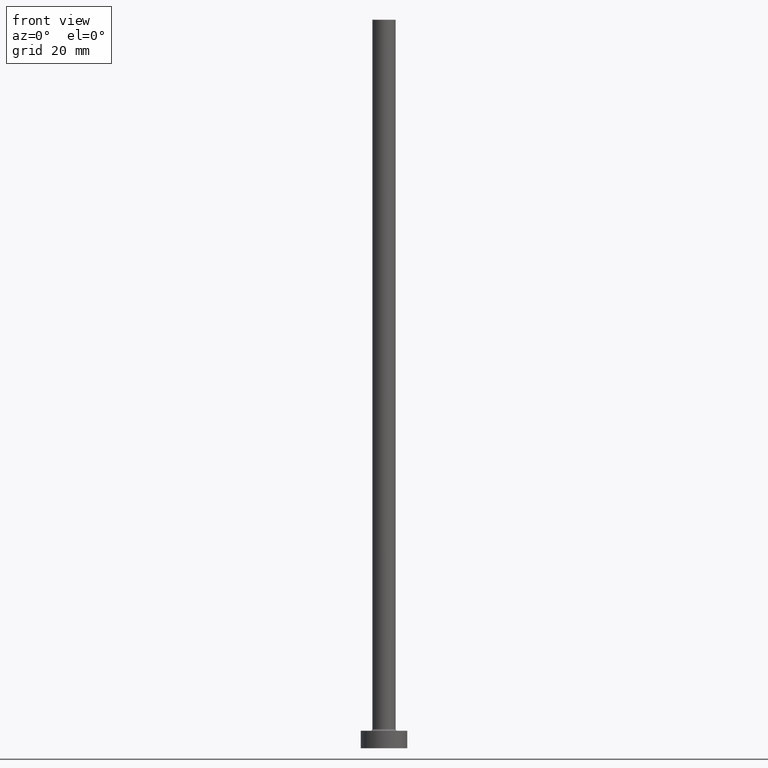
[diagram: clean part render]
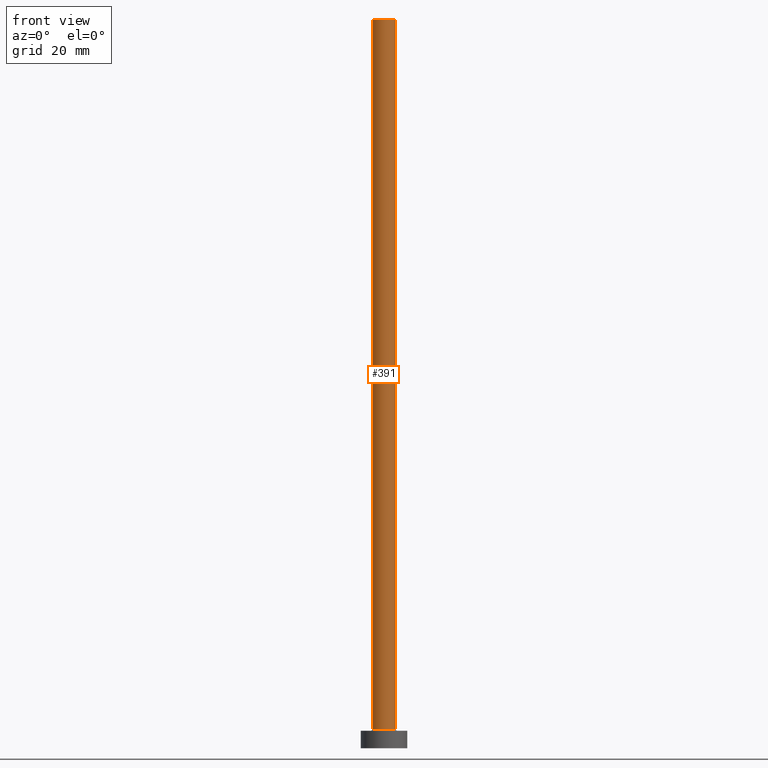
[diagram: same view with one face highlighted and labeled with its STEP entity id]
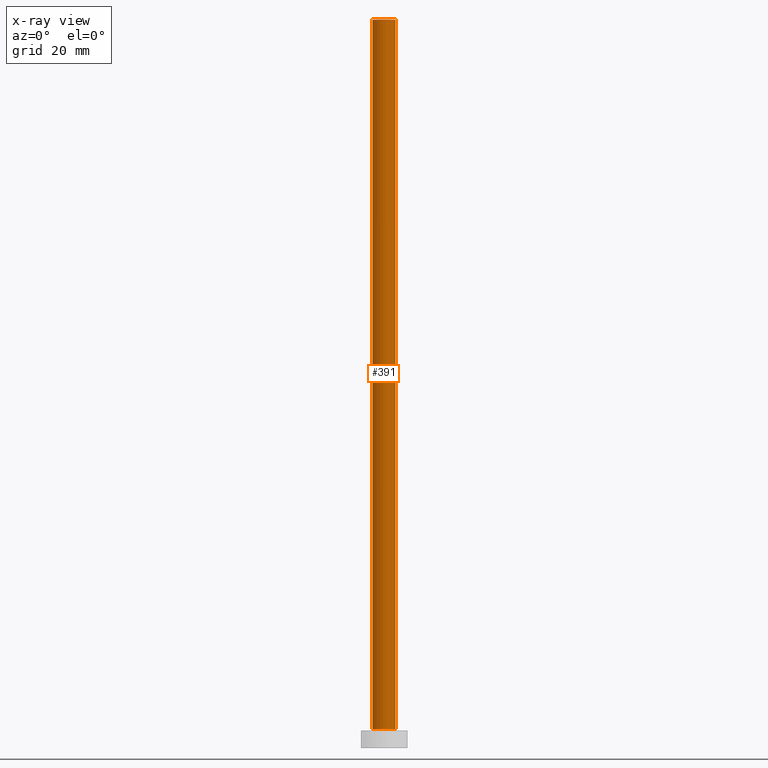
[diagram: x-ray of the same camera — body ghosted, the highlighted face saturated]
A machine part, front view. The second image highlights one B-rep face of the part: STEP entity #391.
The next image is the same camera in x-ray: the body ghosted, the highlighted face saturated — about 0% of this face is hidden behind the body in this view.
In plain terms, the highlighted cylindrical surface (edge-blend (fillet) strip) has radius 2 mm, axis along (-0, -0, -1).
Its self-contained STEP definition (entity closure, byte-faithful):
#3 = DIRECTION ( 'NONE',  ( -1.000000000000000000, 0.000000000000000000, 0.000000000000000000 ) ) ;
#35 = DIRECTION ( 'NONE',  ( 1.000000000000000000, 0.000000000000000000, 0.000000000000000000 ) ) ;
#38 = FACE_OUTER_BOUND ( 'NONE', #247, .T. ) ;
#54 = AXIS2_PLACEMENT_3D ( 'NONE', #105, #362, #35 ) ;
#84 = VERTEX_POINT ( 'NONE', #339 ) ;
#105 = CARTESIAN_POINT ( 'NONE',  ( 0.000000000000000000, 0.000000000000000000, 125.0000000000000000 ) ) ;
#115 = LINE ( 'NONE', #380, #165 ) ;
#128 = CARTESIAN_POINT ( 'NONE',  ( -2.000000000000000000, 0.000000000000000000, 3.299999999999997158 ) ) ;
#151 = AXIS2_PLACEMENT_3D ( 'NONE', #325, #459, #3 ) ;
#155 = VERTEX_POINT ( 'NONE', #128 ) ;
#160 = DIRECTION ( 'NONE',  ( -0.000000000000000000, -0.000000000000000000, -1.000000000000000000 ) ) ;
#165 = VECTOR ( 'NONE', #160, 1000.000000000000000 ) ;
#170 = DIRECTION ( 'NONE',  ( 0.000000000000000000, 0.000000000000000000, 1.000000000000000000 ) ) ;
#179 = EDGE_CURVE ( 'NONE', #403, #251, #115, .T. ) ;
#222 = DIRECTION ( 'NONE',  ( -0.000000000000000000, -0.000000000000000000, -1.000000000000000000 ) ) ;
#225 = CARTESIAN_POINT ( 'NONE',  ( 2.000000000000000000, 2.449293598294705921E-16, 125.0000000000000000 ) ) ;
#247 = EDGE_LOOP ( 'NONE', ( #285, #337, #338, #271 ) ) ;
#251 = VERTEX_POINT ( 'NONE', #416 ) ;
#253 = CYLINDRICAL_SURFACE ( 'NONE', #151, 2.000000000000000000 ) ;
#264 = CIRCLE ( 'NONE', #54, 2.000000000000000000 ) ;
#271 = ORIENTED_EDGE ( 'NONE', *, *, #279, .T. ) ;
#279 = EDGE_CURVE ( 'NONE', #155, #251, #439, .T. ) ;
#285 = ORIENTED_EDGE ( 'NONE', *, *, #179, .F. ) ;
#316 = CARTESIAN_POINT ( 'NONE',  ( 0.000000000000000000, 0.000000000000000000, 3.299999999999997158 ) ) ;
#325 = CARTESIAN_POINT ( 'NONE',  ( 0.000000000000000000, 0.000000000000000000, 125.0000000000000000 ) ) ;
#329 = VECTOR ( 'NONE', #222, 1000.000000000000000 ) ;
#337 = ORIENTED_EDGE ( 'NONE', *, *, #359, .F. ) ;
#338 = ORIENTED_EDGE ( 'NONE', *, *, #458, .T. ) ;
#339 = CARTESIAN_POINT ( 'NONE',  ( -2.000000000000000000, 0.000000000000000000, 125.0000000000000000 ) ) ;
#357 = DIRECTION ( 'NONE',  ( 1.000000000000000000, 0.000000000000000000, 0.000000000000000000 ) ) ;
#359 = EDGE_CURVE ( 'NONE', #84, #403, #264, .T. ) ;
#362 = DIRECTION ( 'NONE',  ( 0.000000000000000000, 0.000000000000000000, 1.000000000000000000 ) ) ;
#380 = CARTESIAN_POINT ( 'NONE',  ( 2.000000000000000000, 2.449293598294705921E-16, 125.0000000000000000 ) ) ;
#391 = ADVANCED_FACE ( 'NONE', ( #38 ), #253, .T. ) ;
#402 = CARTESIAN_POINT ( 'NONE',  ( -2.000000000000000000, 0.000000000000000000, 125.0000000000000000 ) ) ;
#403 = VERTEX_POINT ( 'NONE', #225 ) ;
#416 = CARTESIAN_POINT ( 'NONE',  ( 2.000000000000000000, 2.449293598294705921E-16, 3.299999999999997158 ) ) ;
#438 = LINE ( 'NONE', #402, #329 ) ;
#439 = CIRCLE ( 'NONE', #454, 2.000000000000000000 ) ;
#454 = AXIS2_PLACEMENT_3D ( 'NONE', #316, #170, #357 ) ;
#458 = EDGE_CURVE ( 'NONE', #84, #155, #438, .T. ) ;
#459 = DIRECTION ( 'NONE',  ( -0.000000000000000000, -0.000000000000000000, -1.000000000000000000 ) ) ;